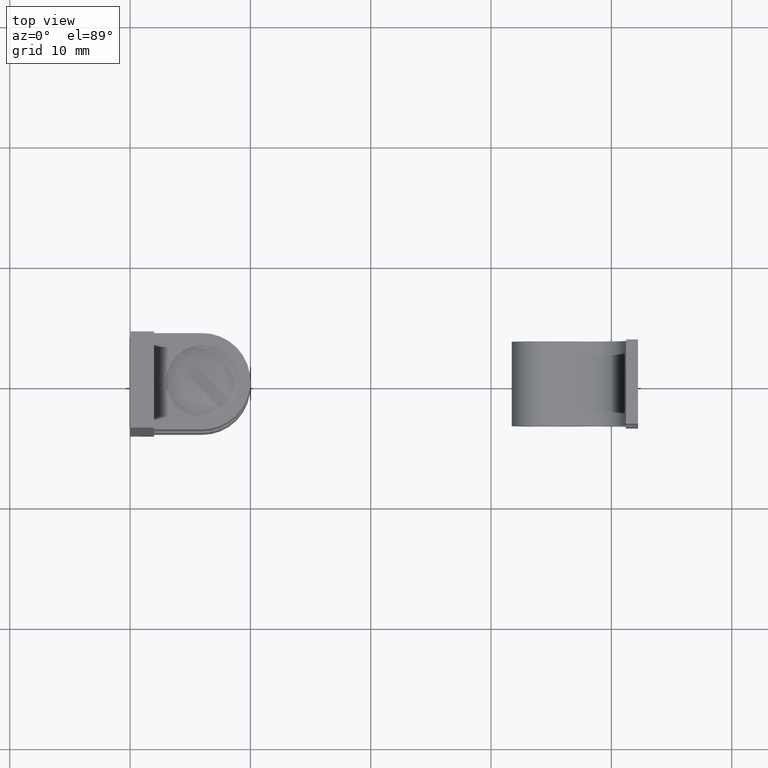
[diagram: clean part render]
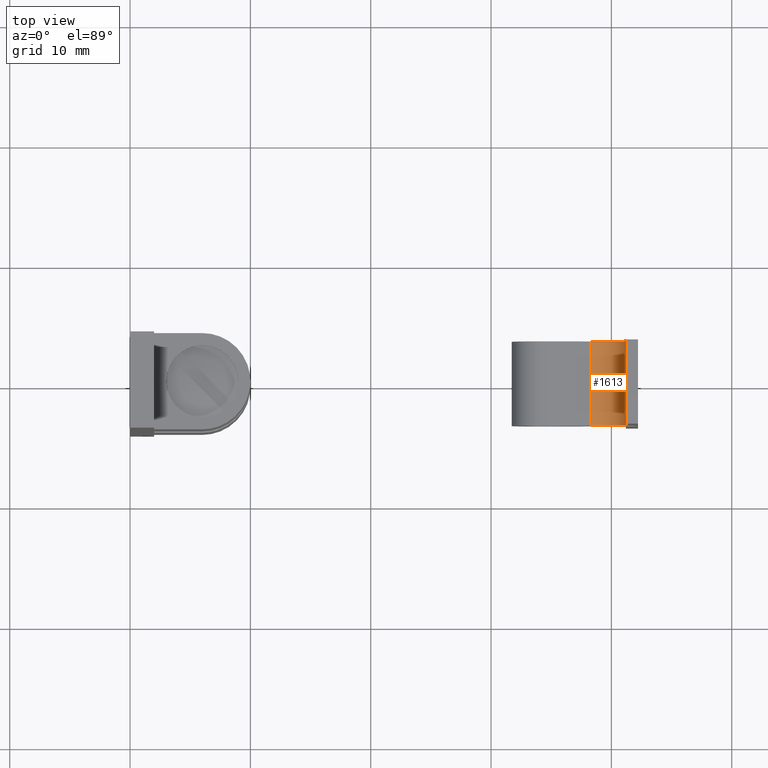
[diagram: same view with one face highlighted and labeled with its STEP entity id]
A machine part, top view. The second image highlights one B-rep face of the part: STEP entity #1613.
In plain terms, the highlighted face is a freeform B-spline surface patch.
Its self-contained STEP definition (entity closure, byte-faithful):
#983=CARTESIAN_POINT('',(41.205122876470597,3.500000000000060,4.500000000000000));
#984=VERTEX_POINT('',#983);
#1135=CARTESIAN_POINT('',(38.296837544412497,3.500000000000060,2.033564700295965));
#1136=VERTEX_POINT('',#1135);
#1142=CARTESIAN_POINT('',(38.296837544412497,3.500000000000060,2.033564700295950));
#1143=CARTESIAN_POINT('',(39.439094635733433,3.500000000000060,1.844479336539745));
#1144=CARTESIAN_POINT('',(40.322108756102011,3.500000000000060,2.593338869889925));
#1145=CARTESIAN_POINT('',(41.205122876470597,3.500000000000060,3.342198403240105));
#1146=CARTESIAN_POINT('',(41.205122876470597,3.500000000000060,4.500000000000000));
#1154=(BOUNDED_CURVE()B_SPLINE_CURVE(2,(#1142,#1143,#1144,#1145,#1146),.UNSPECIFIED.,.F.,.U.)B_SPLINE_CURVE_WITH_KNOTS((3,2,3),(0.0,0.500000000000000,1.0),.UNSPECIFIED.)CURVE()GEOMETRIC_REPRESENTATION_ITEM()RATIONAL_B_SPLINE_CURVE((1.0,0.907412351649614,1.0,0.907412351649614,1.0))REPRESENTATION_ITEM(''));
#1155=EDGE_CURVE('',#1136,#984,#1154,.T.);
#1167=CARTESIAN_POINT('',(41.205122876470597,-3.499999999999835,4.500000000000000));
#1168=VERTEX_POINT('',#1167);
#1174=CARTESIAN_POINT('',(38.296837544412497,-3.499999999999835,2.033564700295965));
#1175=VERTEX_POINT('',#1174);
#1176=CARTESIAN_POINT('',(38.296837544412497,-3.499999999999835,2.033564700295950));
#1177=CARTESIAN_POINT('',(39.439094635733433,-3.499999999999836,1.844479336539745));
#1178=CARTESIAN_POINT('',(40.322108756102011,-3.499999999999835,2.593338869889925));
#1179=CARTESIAN_POINT('',(41.205122876470597,-3.499999999999836,3.342198403240105));
#1180=CARTESIAN_POINT('',(41.205122876470597,-3.499999999999835,4.500000000000000));
#1188=(BOUNDED_CURVE()B_SPLINE_CURVE(2,(#1176,#1177,#1178,#1179,#1180),.UNSPECIFIED.,.F.,.U.)B_SPLINE_CURVE_WITH_KNOTS((3,2,3),(0.0,0.500000000000000,1.0),.UNSPECIFIED.)CURVE()GEOMETRIC_REPRESENTATION_ITEM()RATIONAL_B_SPLINE_CURVE((1.0,0.907412351649614,1.0,0.907412351649614,1.0))REPRESENTATION_ITEM(''));
#1189=EDGE_CURVE('',#1175,#1168,#1188,.T.);
#1581=CARTESIAN_POINT('',(38.296837544412497,-3.499999999999835,2.033564700295965));
#1582=CARTESIAN_POINT('',(38.296837544412497,3.500000000000060,2.033564700295965));
#1583=QUASI_UNIFORM_CURVE('',1,(#1581,#1582),.UNSPECIFIED.,.F.,.U.);
#1584=EDGE_CURVE('',#1175,#1136,#1583,.T.);
#1589=CARTESIAN_POINT('',(38.206703040427598,-3.674999999999833,2.050188238447927));
#1590=CARTESIAN_POINT('',(38.206703040427598,3.679375000000058,2.050188238447927));
#1591=CARTESIAN_POINT('',(41.447743546121742,-3.674999999999834,1.390791095039099));
#1592=CARTESIAN_POINT('',(41.447743546121742,3.679375000000058,1.390791095039099));
#1593=CARTESIAN_POINT('',(41.197984674786184,-3.674999999999834,4.688785737010950));
#1594=CARTESIAN_POINT('',(41.197984674786184,3.679375000000058,4.688785737010950));
#1602=(BOUNDED_SURFACE()B_SPLINE_SURFACE(1,2,((#1589,#1591,#1593),(#1590,#1592,#1594)),.UNSPECIFIED.,.F.,.F.,.U.)B_SPLINE_SURFACE_WITH_KNOTS((2,2),(3,3),(0.0,7.354374999999892),(0.0,4.976599192212842),.UNSPECIFIED.)GEOMETRIC_REPRESENTATION_ITEM()RATIONAL_B_SPLINE_SURFACE(((1.0,0.602550779255078,0.998531206816881),(1.0,0.602550779255078,0.998531206816881)))REPRESENTATION_ITEM('')SURFACE());
#1603=ORIENTED_EDGE('',*,*,#1155,.F.);
#1604=ORIENTED_EDGE('',*,*,#1584,.F.);
#1605=ORIENTED_EDGE('',*,*,#1189,.T.);
#1606=CARTESIAN_POINT('',(41.205122876470597,-3.499999999999835,4.500000000000000));
#1607=CARTESIAN_POINT('',(41.205122876470597,3.500000000000060,4.500000000000000));
#1608=QUASI_UNIFORM_CURVE('',1,(#1606,#1607),.UNSPECIFIED.,.F.,.U.);
#1609=EDGE_CURVE('',#1168,#984,#1608,.T.);
#1610=ORIENTED_EDGE('',*,*,#1609,.T.);
#1611=EDGE_LOOP('',(#1603,#1604,#1605,#1610));
#1612=FACE_OUTER_BOUND('',#1611,.T.);
#1613=ADVANCED_FACE('',(#1612),#1602,.F.);